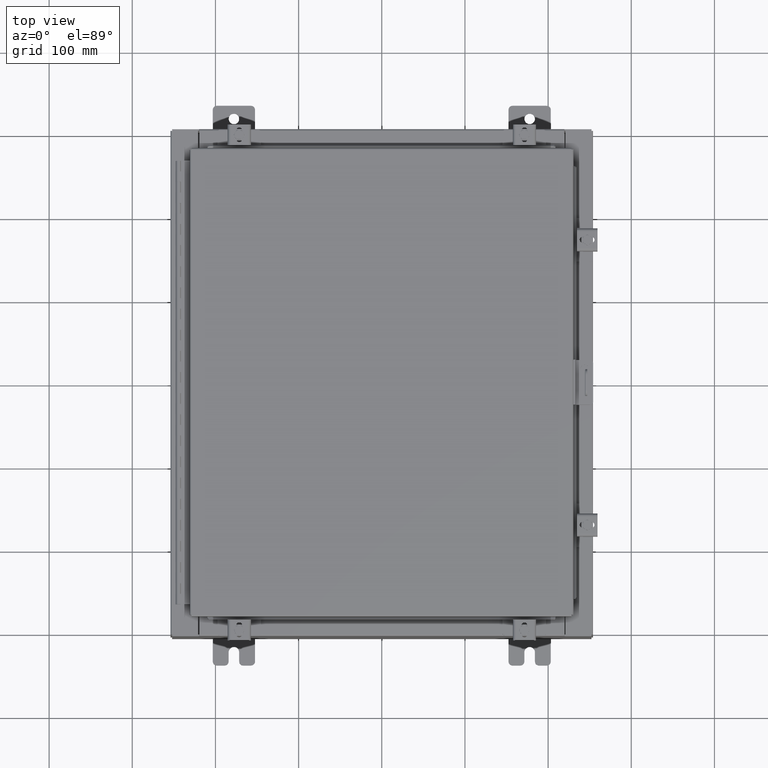
[diagram: clean part render]
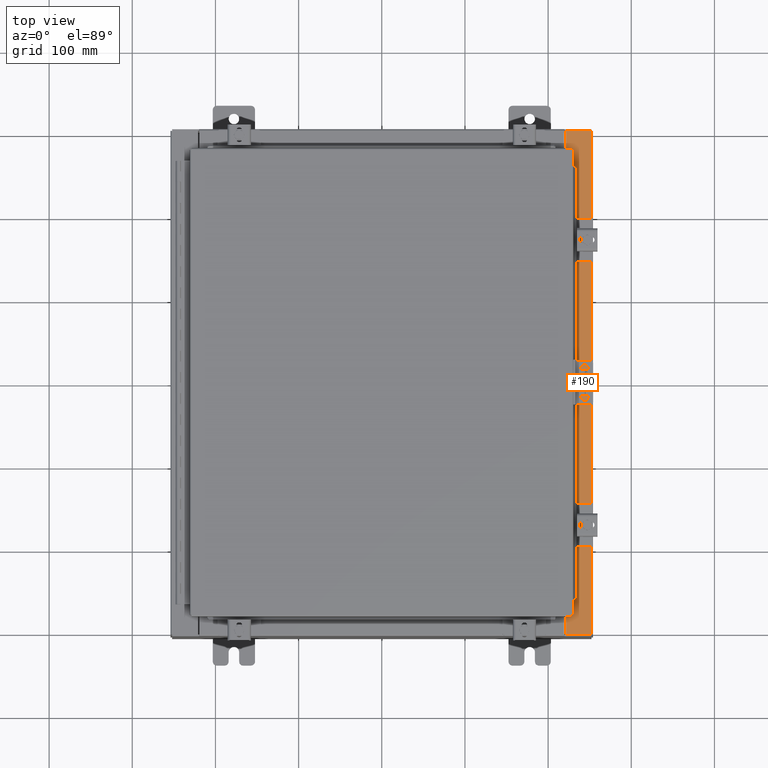
[diagram: same view with one face highlighted and labeled with its STEP entity id]
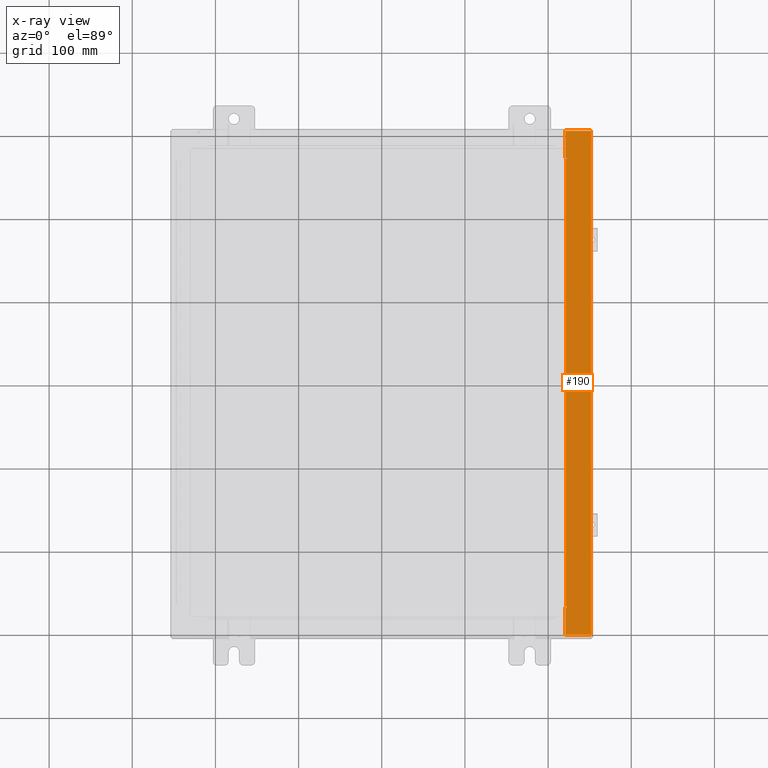
[diagram: x-ray of the same camera — body ghosted, the highlighted face saturated]
A machine part, top view. The second image highlights one B-rep face of the part: STEP entity #190.
The next image is the same camera in x-ray: the body ghosted, the highlighted face saturated — about 0% of this face is hidden behind the body in this view.
In plain terms, the highlighted planar face has unit normal (-0, 0, -1).
Its self-contained STEP definition (entity closure, byte-faithful):
#105 = LINE ( 'NONE', #11453, #32853 ) ;
#190 = ADVANCED_FACE ( 'NONE', ( #6112 ), #6488, .F. ) ;
#621 = DIRECTION ( 'NONE',  ( -0.0000000000000000000, -1.000000000000000000, -0.0000000000000000000 ) ) ;
#1000 = CIRCLE ( 'NONE', #20810, 0.01867499999999949400 ) ;
#1279 = CARTESIAN_POINT ( 'NONE',  ( 8.712700000000030100, -10.59374999999999800, 7.925300000000008900 ) ) ;
#1342 = VERTEX_POINT ( 'NONE', #15081 ) ;
#1356 = EDGE_CURVE ( 'NONE', #32014, #1342, #1000, .T. ) ;
#1900 = AXIS2_PLACEMENT_3D ( 'NONE', #21556, #21448, #21341 ) ;
#1950 = EDGE_CURVE ( 'NONE', #28962, #2549, #23374, .T. ) ;
#2437 = VECTOR ( 'NONE', #31234, 39.37007874015748100 ) ;
#2549 = VERTEX_POINT ( 'NONE', #21563 ) ;
#2579 = VECTOR ( 'NONE', #8253, 39.37007874015748100 ) ;
#3081 = CIRCLE ( 'NONE', #1900, 0.01867499999999949400 ) ;
#3414 = VERTEX_POINT ( 'NONE', #17391 ) ;
#4370 = DIRECTION ( 'NONE',  ( -1.000000000000000000, 0.0000000000000000000, 6.241167087353080700E-015 ) ) ;
#5236 = CARTESIAN_POINT ( 'NONE',  ( 8.750050000000030100, 10.63109999999999500, 7.925300000000007100 ) ) ;
#5960 = VERTEX_POINT ( 'NONE', #11031 ) ;
#6030 = VERTEX_POINT ( 'NONE', #32279 ) ;
#6112 = FACE_OUTER_BOUND ( 'NONE', #29799, .T. ) ;
#6488 = PLANE ( 'NONE',  #24251 ) ;
#6532 = ORIENTED_EDGE ( 'NONE', *, *, #27548, .T. ) ;
#7717 = ORIENTED_EDGE ( 'NONE', *, *, #1950, .F. ) ;
#8116 = EDGE_CURVE ( 'NONE', #9392, #20961, #105, .T. ) ;
#8253 = DIRECTION ( 'NONE',  ( -1.000000000000000000, 0.0000000000000000000, 6.241167087353082300E-015 ) ) ;
#8963 = ORIENTED_EDGE ( 'NONE', *, *, #16420, .T. ) ;
#9212 = ORIENTED_EDGE ( 'NONE', *, *, #28794, .F. ) ;
#9223 = LINE ( 'NONE', #17577, #10487 ) ;
#9379 = VECTOR ( 'NONE', #15715, 39.37007874015748100 ) ;
#9392 = VERTEX_POINT ( 'NONE', #1279 ) ;
#10027 = CARTESIAN_POINT ( 'NONE',  ( 9.912300000000028500, 11.92529999999999800, 7.925300000000000000 ) ) ;
#10306 = EDGE_CURVE ( 'NONE', #11503, #28962, #3081, .T. ) ;
#10487 = VECTOR ( 'NONE', #621, 39.37007874015748100 ) ;
#11031 = CARTESIAN_POINT ( 'NONE',  ( 9.912300000000028500, -11.92530000000000000, 7.925300000000000000 ) ) ;
#11089 = DIRECTION ( 'NONE',  ( 1.000000000000000000, 0.0000000000000000000, 0.0000000000000000000 ) ) ;
#11453 = CARTESIAN_POINT ( 'NONE',  ( 8.712700000000030100, -10.59375000000000000, 7.925300000000008900 ) ) ;
#11503 = VERTEX_POINT ( 'NONE', #22541 ) ;
#12206 = CARTESIAN_POINT ( 'NONE',  ( 4.972393517341134900E-014, 0.0000000000000000000, 7.925300000000062200 ) ) ;
#12501 = EDGE_CURVE ( 'NONE', #20961, #11503, #16976, .T. ) ;
#12781 = ORIENTED_EDGE ( 'NONE', *, *, #28174, .T. ) ;
#12843 = LINE ( 'NONE', #22461, #19962 ) ;
#12888 = ORIENTED_EDGE ( 'NONE', *, *, #8116, .F. ) ;
#13895 = CARTESIAN_POINT ( 'NONE',  ( 8.699700000000028400, -2.820533458446088700E-030, 7.925300000000007100 ) ) ;
#14508 = ORIENTED_EDGE ( 'NONE', *, *, #12501, .F. ) ;
#14685 = VECTOR ( 'NONE', #19205, 39.37007874015748100 ) ;
#14818 = DIRECTION ( 'NONE',  ( -3.242104277671754600E-031, -1.000000000000000000, 2.023451451157158500E-045 ) ) ;
#15070 = CARTESIAN_POINT ( 'NONE',  ( 8.750050000000030100, 10.63109999999999500, 7.925300000000008900 ) ) ;
#15081 = CARTESIAN_POINT ( 'NONE',  ( 8.750050000000030100, -10.59374999999999800, 7.925300000000007100 ) ) ;
#15356 = VECTOR ( 'NONE', #25875, 39.37007874015748100 ) ;
#15618 = ORIENTED_EDGE ( 'NONE', *, *, #1356, .F. ) ;
#15715 = DIRECTION ( 'NONE',  ( -1.000000000000000000, 4.340572780399910900E-014, 0.0000000000000000000 ) ) ;
#16376 = CARTESIAN_POINT ( 'NONE',  ( 8.699700000000028400, -10.63109999999999600, 7.925300000000007100 ) ) ;
#16420 = EDGE_CURVE ( 'NONE', #30684, #6030, #21053, .T. ) ;
#16732 = CARTESIAN_POINT ( 'NONE',  ( 8.699700000000028400, -2.820533458446088700E-030, 7.925300000000007100 ) ) ;
#16976 = LINE ( 'NONE', #25829, #15356 ) ;
#17391 = CARTESIAN_POINT ( 'NONE',  ( 8.699700000000028400, 11.92529999999999600, 7.925300000000007100 ) ) ;
#17577 = CARTESIAN_POINT ( 'NONE',  ( 9.912300000000028500, -11.92530000000000000, 7.925300000000000000 ) ) ;
#17946 = VECTOR ( 'NONE', #21654, 39.37007874015748100 ) ;
#18172 = ORIENTED_EDGE ( 'NONE', *, *, #20524, .F. ) ;
#18214 = CARTESIAN_POINT ( 'NONE',  ( 4.972393517341134900E-014, 11.92529999999999800, 7.925300000000062200 ) ) ;
#18960 = CARTESIAN_POINT ( 'NONE',  ( 8.712700000000030100, 10.59374999999999600, 7.925300000000008900 ) ) ;
#19205 = DIRECTION ( 'NONE',  ( -3.242104277671754600E-031, -1.000000000000000000, 2.023451451157158500E-045 ) ) ;
#19341 = ORIENTED_EDGE ( 'NONE', *, *, #10306, .F. ) ;
#19658 = CARTESIAN_POINT ( 'NONE',  ( 8.750050000000030100, -10.63109999999999600, 7.925300000000007100 ) ) ;
#19661 = ORIENTED_EDGE ( 'NONE', *, *, #26909, .F. ) ;
#19725 = EDGE_CURVE ( 'NONE', #6030, #5960, #27277, .T. ) ;
#19756 = VERTEX_POINT ( 'NONE', #10027 ) ;
#19962 = VECTOR ( 'NONE', #22508, 39.37007874015748100 ) ;
#20524 = EDGE_CURVE ( 'NONE', #1342, #9392, #12843, .T. ) ;
#20810 = AXIS2_PLACEMENT_3D ( 'NONE', #28051, #32483, #11089 ) ;
#20961 = VERTEX_POINT ( 'NONE', #18960 ) ;
#21053 = LINE ( 'NONE', #13895, #26356 ) ;
#21065 = CARTESIAN_POINT ( 'NONE',  ( 4.972393517341134900E-014, -11.92530000000000000, 7.925300000000062200 ) ) ;
#21341 = DIRECTION ( 'NONE',  ( 1.000000000000000000, 0.0000000000000000000, 0.0000000000000000000 ) ) ;
#21448 = DIRECTION ( 'NONE',  ( 6.241167087353081500E-015, 0.0000000000000000000, 1.000000000000000000 ) ) ;
#21556 = CARTESIAN_POINT ( 'NONE',  ( 8.750050000000030100, 10.61242499999999500, 7.925300000000008900 ) ) ;
#21563 = CARTESIAN_POINT ( 'NONE',  ( 8.699700000000028400, 10.63109999999999600, 7.925300000000007100 ) ) ;
#21654 = DIRECTION ( 'NONE',  ( 1.000000000000000000, 4.084933421431490900E-032, -6.241167087353082300E-015 ) ) ;
#22082 = ORIENTED_EDGE ( 'NONE', *, *, #19725, .T. ) ;
#22461 = CARTESIAN_POINT ( 'NONE',  ( 8.750050000000030100, -10.59374999999999800, 7.925300000000008900 ) ) ;
#22508 = DIRECTION ( 'NONE',  ( -1.000000000000000000, 0.0000000000000000000, 0.0000000000000000000 ) ) ;
#22541 = CARTESIAN_POINT ( 'NONE',  ( 8.750050000000030100, 10.59374999999999600, 7.925300000000007100 ) ) ;
#23374 = LINE ( 'NONE', #15070, #9379 ) ;
#24251 = AXIS2_PLACEMENT_3D ( 'NONE', #12206, #24570, #4370 ) ;
#24570 = DIRECTION ( 'NONE',  ( -6.241167087353080700E-015, 0.0000000000000000000, -1.000000000000000000 ) ) ;
#25075 = CARTESIAN_POINT ( 'NONE',  ( 8.699700000000028400, -10.63109999999999600, 7.925300000000008900 ) ) ;
#25376 = LINE ( 'NONE', #25075, #2437 ) ;
#25829 = CARTESIAN_POINT ( 'NONE',  ( 8.712700000000030100, 10.59374999999999600, 7.925300000000008900 ) ) ;
#25875 = DIRECTION ( 'NONE',  ( 1.000000000000000000, 0.0000000000000000000, 0.0000000000000000000 ) ) ;
#26174 = DIRECTION ( 'NONE',  ( -0.0000000000000000000, 1.000000000000000000, -0.0000000000000000000 ) ) ;
#26341 = LINE ( 'NONE', #18214, #2579 ) ;
#26356 = VECTOR ( 'NONE', #14818, 39.37007874015748100 ) ;
#26909 = EDGE_CURVE ( 'NONE', #19756, #5960, #9223, .T. ) ;
#27277 = LINE ( 'NONE', #21065, #17946 ) ;
#27548 = EDGE_CURVE ( 'NONE', #3414, #2549, #28776, .T. ) ;
#28051 = CARTESIAN_POINT ( 'NONE',  ( 8.750050000000030100, -10.61242499999999800, 7.925300000000008900 ) ) ;
#28174 = EDGE_CURVE ( 'NONE', #19756, #3414, #26341, .T. ) ;
#28776 = LINE ( 'NONE', #16732, #14685 ) ;
#28794 = EDGE_CURVE ( 'NONE', #30684, #32014, #25376, .T. ) ;
#28962 = VERTEX_POINT ( 'NONE', #5236 ) ;
#29799 = EDGE_LOOP ( 'NONE', ( #9212, #8963, #22082, #19661, #12781, #6532, #7717, #19341, #14508, #12888, #18172, #15618 ) ) ;
#30684 = VERTEX_POINT ( 'NONE', #16376 ) ;
#31234 = DIRECTION ( 'NONE',  ( 1.000000000000000000, 0.0000000000000000000, 0.0000000000000000000 ) ) ;
#32014 = VERTEX_POINT ( 'NONE', #19658 ) ;
#32279 = CARTESIAN_POINT ( 'NONE',  ( 8.699700000000028400, -11.92530000000000000, 7.925300000000007100 ) ) ;
#32483 = DIRECTION ( 'NONE',  ( 6.241167087353081500E-015, 0.0000000000000000000, 1.000000000000000000 ) ) ;
#32853 = VECTOR ( 'NONE', #26174, 39.37007874015748100 ) ;